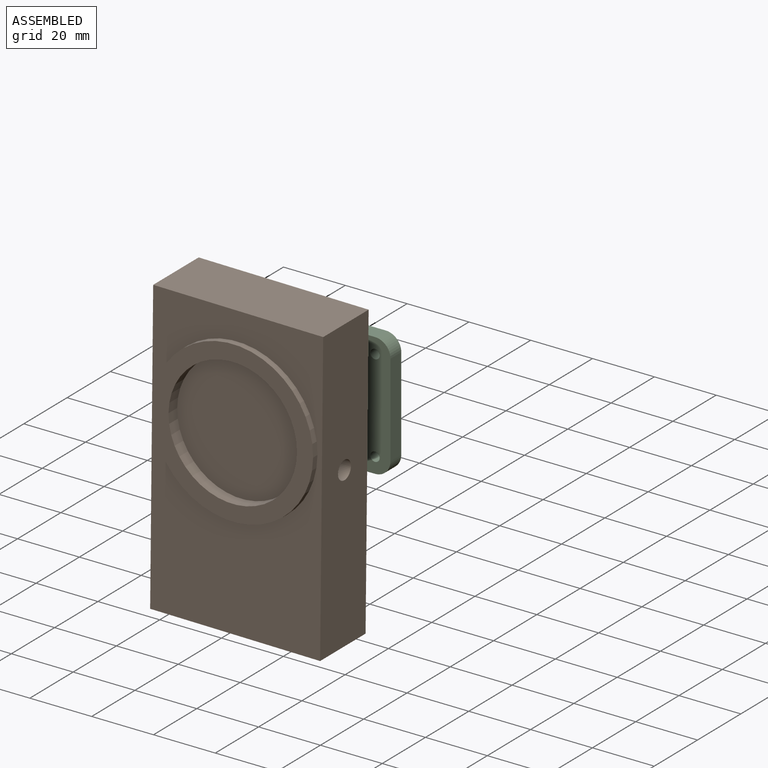
[diagram: assembled view]
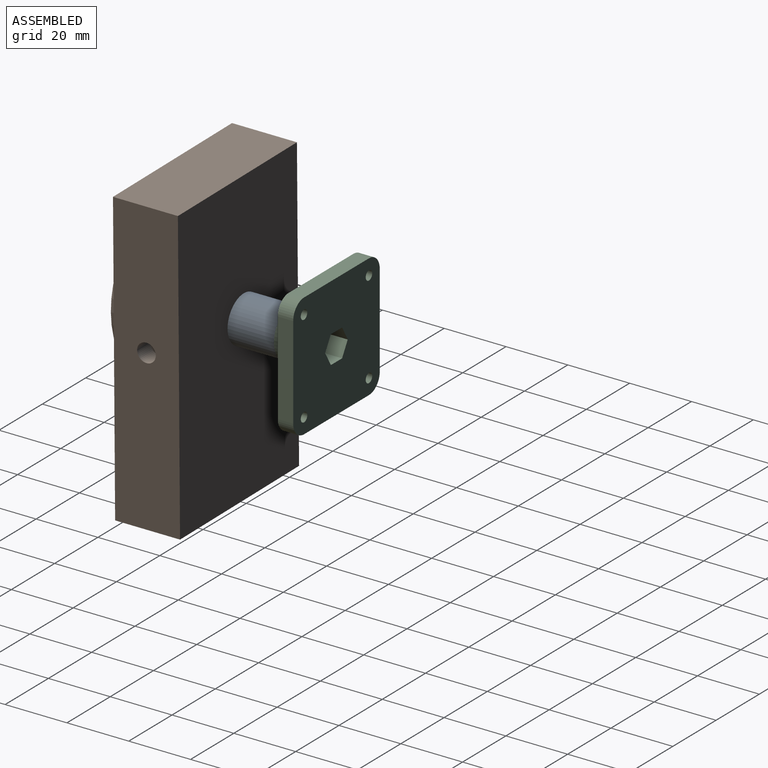
[diagram: assembled view, second angle]
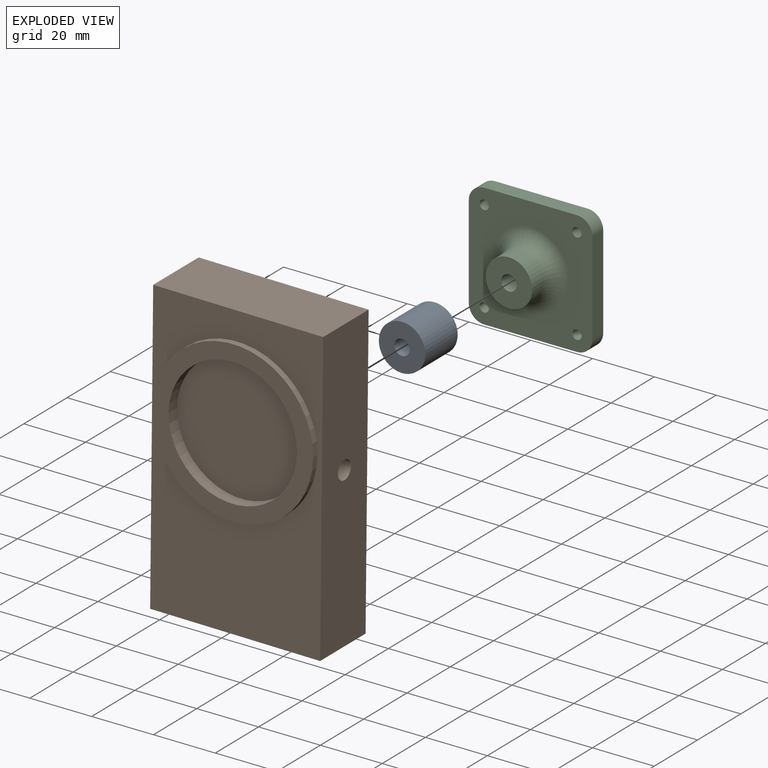
[diagram: exploded view]
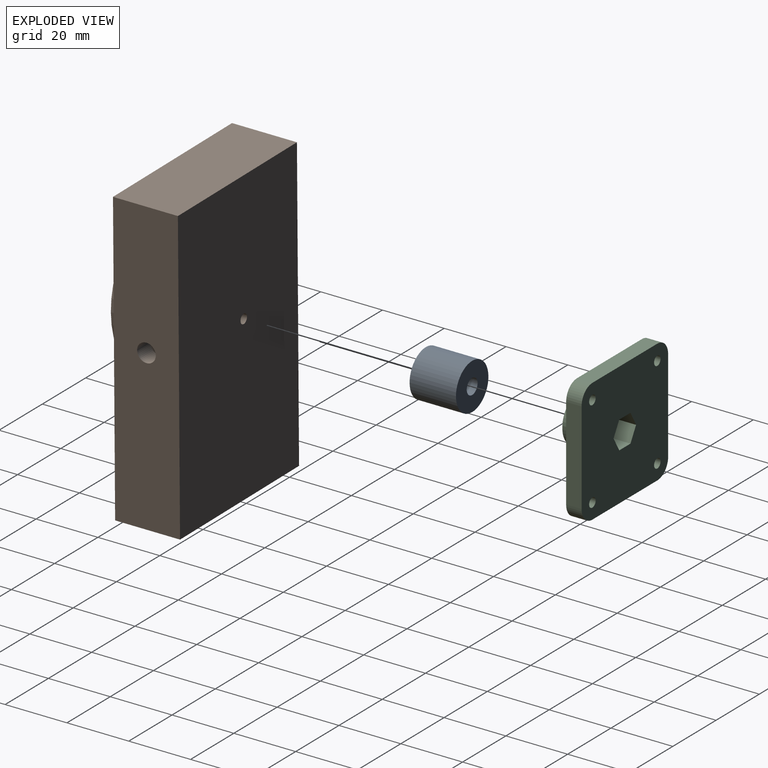
[diagram: exploded view, second angle]
ASSEMBLY  parts=3 mates=4
PART A: 4 faces, bbox 15x15x15 mm
  f0: cylinder r=2.5mm len=15mm, axis (0,1,0), area 235.6mm2, adj f2,f3
  f1: cylinder r=7.5mm len=15mm, axis (0,1,0), area 706.9mm2, adj f2,f3
  f2: plane 15x15mm, normal (0,-1,0), area 157.1mm2, adj f0,f1
  f3: plane 15x15mm, normal (0,1,0), area 157.1mm2, adj f0,f1
PART B: 14 faces, bbox 95x23x55 mm
  f0: plane 95x21mm, normal (0,0,-1), area 1966.7mm2, adj f1,f3,f4,f5,f10
  f1: plane 55x21mm, normal (1,0,0), area 1155mm2, adj f0,f2,f4,f5
  f2: plane 95x21mm, normal (0,0,1), area 1995mm2, adj f1,f3,f4,f5
  f3: plane 55x21mm, normal (-1,0,0), area 1155mm2, adj f0,f2,f4,f5
  f4: plane 95x55mm, normal (0,-1,0), area 3101.3mm2, adj f0,f1,f2,f3,f6
  f5: plane 95x55mm, normal (0,1,0), area 5217.9mm2, adj f0,f1,f2,f3,f12
  f6: cylinder r=26mm len=52mm, axis (0,1,0), area 326.7mm2, adj f4,f7
  f7: plane 52x52mm, normal (0,-1,0), area 767.3mm2, adj f6,f8
  f8: cylinder r=20.78mm len=41.56mm, axis (0,-1,0), area 522.2mm2, adj f7,f9
  f9: plane 41.56x41.56mm, normal (0,-1,0), area 1356.4mm2, adj f8
  f10: cylinder r=3mm len=6mm, axis (0,0,-1), area 113.1mm2, adj f0,f11
  f11: plane 6x6mm, normal (0,0,-1), area 28.3mm2, adj f10
  f12: cylinder r=1.5mm len=5mm, axis (0,1,0), area 47.1mm2, adj f5,f13
  f13: plane 3x3mm, normal (0,1,0), area 7.1mm2, adj f12
PART C: 25 faces, bbox 40x15x40 mm
  f0: cylinder r=2.5mm len=9mm, axis (0,1,0), area 141.4mm2, adj f16,f24
  f1: plane 30x5mm, normal (1,0,0), area 150mm2, adj f2,f12,f13,f14
  f2: cylinder r=5mm len=5mm, axis (0,1,0), area 39.3mm2, adj f1,f3,f13,f14
  f3: plane 30x5mm, normal (0,0,1), area 150mm2, adj f2,f4,f13,f14
  f4: cylinder r=5mm len=5mm, axis (0,1,0), area 39.3mm2, adj f3,f5,f13,f14
  f5: plane 30x5mm, normal (-1,0,0), area 150mm2, adj f4,f6,f13,f14
  f6: cylinder r=5mm len=5mm, axis (0,1,0), area 39.3mm2, adj f5,f7,f13,f14
  f7: plane 30x5mm, normal (0,0,-1), area 150mm2, adj f6,f12,f13,f14
  f8: cylinder r=1.5mm len=5mm, axis (0,1,0), area 47.1mm2, adj f13,f14
  f9: cylinder r=1.5mm len=5mm, axis (0,1,0), area 47.1mm2, adj f13,f14
  f10: cylinder r=1.5mm len=5mm, axis (0,1,0), area 47.1mm2, adj f13,f14
  f11: cylinder r=1.5mm len=5mm, axis (0,1,0), area 47.1mm2, adj f13,f14
  f12: cylinder r=5mm len=5mm, axis (0,1,0), area 39.3mm2, adj f1,f7,f13,f14
  f13: plane 40x40mm, normal (0,-1,0), area 1059.4mm2, adj f1,f2,f3,f4,f5,f6,f7,f8
  f14: plane 40x40mm, normal (0,1,0), area 1480.1mm2, adj f1,f2,f3,f4,f5,f6,f7,f8
  f15: cylinder r=7.5mm len=15mm, axis (0,1,0), area 235.6mm2, adj f16,f17
  f16: plane 15x15mm, normal (0,-1,0), area 157.1mm2, adj f0,f15
  f17: torus R=12.5mm, axis (0,-1,0), area 459.8mm2, adj f13,f15
  f18: plane 6x4.5mm, normal (-0.87,0,0.5), area 31.2mm2, adj f14,f19,f23,f24
  f19: plane 6x5.2mm, normal (0,0,1), area 31.2mm2, adj f14,f18,f20,f24
  f20: plane 6x4.5mm, normal (0.87,0,0.5), area 31.2mm2, adj f14,f19,f21,f24
  f21: plane 6x4.5mm, normal (0.87,0,-0.5), area 31.2mm2, adj f14,f20,f22,f24
  f22: plane 6x5.2mm, normal (0,0,-1), area 31.2mm2, adj f14,f21,f23,f24
  f23: plane 6x4.5mm, normal (-0.87,0,-0.5), area 31.2mm2, adj f14,f18,f22,f24
  f24: plane 10.39x9mm, normal (0,1,0), area 50.5mm2, adj f0,f18,f19,f20,f21,f22,f23
PLACE A rot(axis=(0,1,0),180deg) t=(2.5,-4.05,3.01)mm
PLACE B rot(axis=(0,-1,0),89.4deg) t=(4.94,-19.05,-2.52)mm
PLACE C t=(2.5,10.95,3.01)mm fixed
MATE cylindrical C.f15 <-> A.f0  axis (0,-1,0) through (2.5,-4.05,3.01)mm
MATE planar B.f5 <-> A.f1  axis (0,1,0) through (4.95,-19.05,-2.53)mm
MATE cylindrical A.f1 <-> B.f12  axis (0,-1,0) through (2.5,-19.05,3.01)mm
MATE planar C.f15 <-> A.f1  axis (0,-1,0) through (2.5,-4.05,3.01)mm
